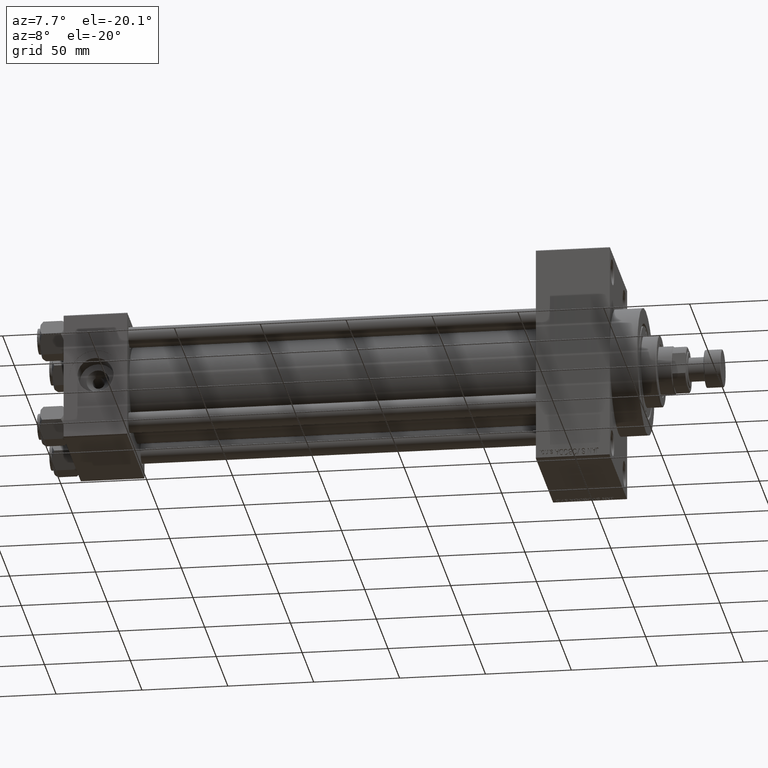
[diagram: clean part render]
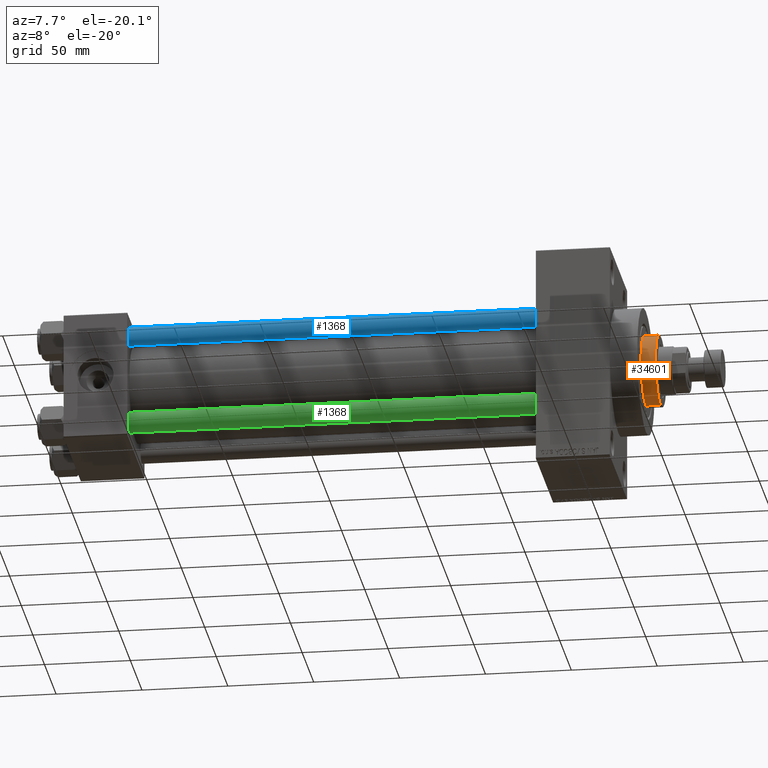
[diagram: same view with three faces highlighted in distinct colors, each labeled with its STEP entity id]
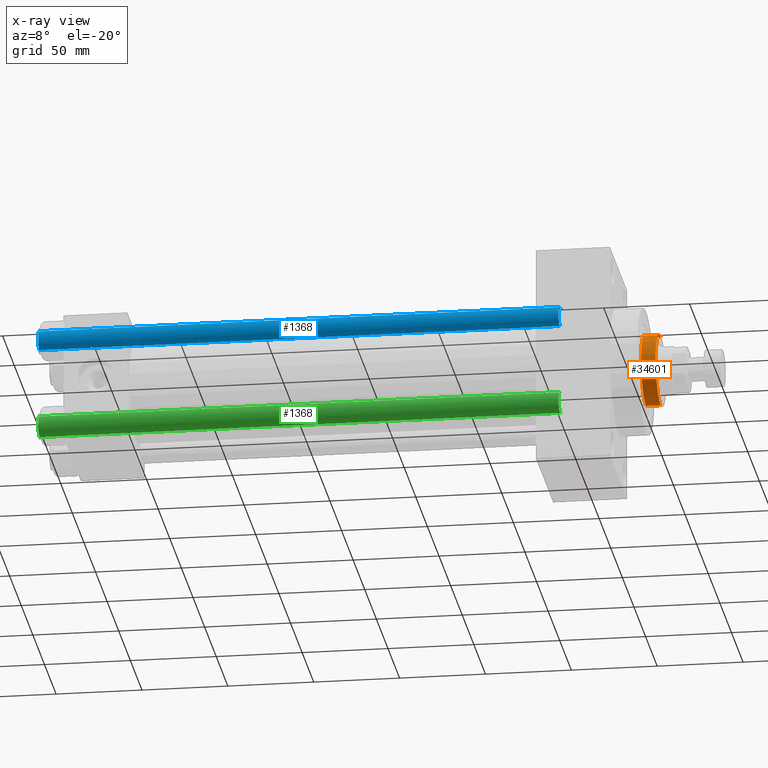
[diagram: x-ray of the same camera — body ghosted, the three highlighted faces saturated]
A machine part, auxiliary view with three faces highlighted in distinct colors.
The next image is the same camera in x-ray (body ghosted, the three faces saturated) — at least one of them is partly hidden behind the body in this view.
Their STEP definitions:

[orange] entity #34601 — the highlighted cylindrical surface (edge-blend (fillet) strip) has radius 21 mm, axis along (-1, 0, 0).
#157 = DIRECTION ( 'NONE',  ( 1.000000000000000000, 0.000000000000000000, 0.000000000000000000 ) ) ;
#645 = CARTESIAN_POINT ( 'NONE',  ( -21.00000000000000000, 0.000000000000000000, 43.25999999999999801 ) ) ;
#1894 = DIRECTION ( 'NONE',  ( 1.000000000000000000, 0.000000000000000000, 0.000000000000000000 ) ) ;
#4465 = CARTESIAN_POINT ( 'NONE',  ( -21.00000000000000000, 0.000000000000000000, 51.75999999999999801 ) ) ;
#5526 = AXIS2_PLACEMENT_3D ( 'NONE', #30940, #28029, #1894 ) ;
#6184 = CARTESIAN_POINT ( 'NONE',  ( -21.00000000000000000, 0.000000000000000000, 52.25999999999999801 ) ) ;
#6788 = CARTESIAN_POINT ( 'NONE',  ( 21.00000000000000000, 2.571758278209441661E-15, 52.25999999999999801 ) ) ;
#7186 = CIRCLE ( 'NONE', #24180, 21.00000000000000000 ) ;
#7193 = CARTESIAN_POINT ( 'NONE',  ( 0.000000000000000000, 0.000000000000000000, 51.75999999999999801 ) ) ;
#9329 = VECTOR ( 'NONE', #35716, 1000.000000000000000 ) ;
#10544 = VERTEX_POINT ( 'NONE', #40150 ) ;
#14686 = DIRECTION ( 'NONE',  ( -1.000000000000000000, 0.000000000000000000, 0.000000000000000000 ) ) ;
#15151 = CARTESIAN_POINT ( 'NONE',  ( 21.00000000000000000, 2.571758278209441661E-15, 51.75999999999999801 ) ) ;
#15212 = VERTEX_POINT ( 'NONE', #645 ) ;
#16422 = CYLINDRICAL_SURFACE ( 'NONE', #46388, 21.00000000000000000 ) ;
#17304 = LINE ( 'NONE', #6184, #9329 ) ;
#19264 = ORIENTED_EDGE ( 'NONE', *, *, #23568, .T. ) ;
#21544 = DIRECTION ( 'NONE',  ( -0.000000000000000000, -0.000000000000000000, -1.000000000000000000 ) ) ;
#23568 = EDGE_CURVE ( 'NONE', #32275, #10544, #25662, .T. ) ;
#24180 = AXIS2_PLACEMENT_3D ( 'NONE', #7193, #40354, #157 ) ;
#24678 = ORIENTED_EDGE ( 'NONE', *, *, #37663, .T. ) ;
#25317 = ORIENTED_EDGE ( 'NONE', *, *, #35913, .F. ) ;
#25662 = LINE ( 'NONE', #6788, #38434 ) ;
#27423 = EDGE_LOOP ( 'NONE', ( #39559, #19264, #24678, #25317 ) ) ;
#28029 = DIRECTION ( 'NONE',  ( 0.000000000000000000, 0.000000000000000000, 1.000000000000000000 ) ) ;
#30940 = CARTESIAN_POINT ( 'NONE',  ( 0.000000000000000000, 0.000000000000000000, 43.25999999999999801 ) ) ;
#31770 = CIRCLE ( 'NONE', #5526, 21.00000000000000000 ) ;
#32275 = VERTEX_POINT ( 'NONE', #15151 ) ;
#34601 = ADVANCED_FACE ( 'NONE', ( #42101 ), #16422, .T. ) ;
#35716 = DIRECTION ( 'NONE',  ( -0.000000000000000000, -0.000000000000000000, -1.000000000000000000 ) ) ;
#35913 = EDGE_CURVE ( 'NONE', #38076, #15212, #17304, .T. ) ;
#37663 = EDGE_CURVE ( 'NONE', #10544, #15212, #31770, .T. ) ;
#38076 = VERTEX_POINT ( 'NONE', #4465 ) ;
#38434 = VECTOR ( 'NONE', #21544, 1000.000000000000000 ) ;
#38458 = CARTESIAN_POINT ( 'NONE',  ( 0.000000000000000000, 0.000000000000000000, 52.25999999999999801 ) ) ;
#39559 = ORIENTED_EDGE ( 'NONE', *, *, #45445, .T. ) ;
#40150 = CARTESIAN_POINT ( 'NONE',  ( 21.00000000000000000, 2.571758278209441661E-15, 43.25999999999999801 ) ) ;
#40354 = DIRECTION ( 'NONE',  ( 0.000000000000000000, 0.000000000000000000, -1.000000000000000000 ) ) ;
#42101 = FACE_OUTER_BOUND ( 'NONE', #27423, .T. ) ;
#45445 = EDGE_CURVE ( 'NONE', #38076, #32275, #7186, .T. ) ;
#46388 = AXIS2_PLACEMENT_3D ( 'NONE', #38458, #47879, #14686 ) ;
#47879 = DIRECTION ( 'NONE',  ( -0.000000000000000000, -0.000000000000000000, -1.000000000000000000 ) ) ;

[blue] entity #1368 — the highlighted cylindrical surface (edge-blend (fillet) strip) has radius 6 mm, axis along (1, 0, 0).
#828 = VERTEX_POINT ( 'NONE', #43572 ) ;
#900 = CARTESIAN_POINT ( 'NONE',  ( 6.000000000000000888, 7.347880794884120722E-16, 0.4999999999999449329 ) ) ;
#1368 = ADVANCED_FACE ( 'NONE', ( #35228 ), #10042, .T. ) ;
#3238 = LINE ( 'NONE', #32759, #26825 ) ;
#4850 = AXIS2_PLACEMENT_3D ( 'NONE', #24430, #13078, #35327 ) ;
#8971 = EDGE_CURVE ( 'NONE', #828, #33602, #38853, .T. ) ;
#10042 = CYLINDRICAL_SURFACE ( 'NONE', #23260, 6.000000000000000888 ) ;
#10066 = DIRECTION ( 'NONE',  ( -0.000000000000000000, -0.000000000000000000, 1.000000000000000000 ) ) ;
#10617 = AXIS2_PLACEMENT_3D ( 'NONE', #14412, #10066, #17547 ) ;
#11531 = ORIENTED_EDGE ( 'NONE', *, *, #36843, .F. ) ;
#12174 = DIRECTION ( 'NONE',  ( -0.000000000000000000, -0.000000000000000000, -1.000000000000000000 ) ) ;
#13078 = DIRECTION ( 'NONE',  ( 0.000000000000000000, 0.000000000000000000, -1.000000000000000000 ) ) ;
#14412 = CARTESIAN_POINT ( 'NONE',  ( 0.000000000000000000, 0.000000000000000000, 0.4999999999999449329 ) ) ;
#17279 = EDGE_LOOP ( 'NONE', ( #17985, #19429, #36873, #11531 ) ) ;
#17543 = CARTESIAN_POINT ( 'NONE',  ( -6.000000000000000888, 0.000000000000000000, 304.0000000000000000 ) ) ;
#17547 = DIRECTION ( 'NONE',  ( 1.000000000000000000, 0.000000000000000000, 0.000000000000000000 ) ) ;
#17985 = ORIENTED_EDGE ( 'NONE', *, *, #8971, .T. ) ;
#19429 = ORIENTED_EDGE ( 'NONE', *, *, #23117, .T. ) ;
#19659 = VERTEX_POINT ( 'NONE', #36333 ) ;
#21192 = LINE ( 'NONE', #17543, #28705 ) ;
#23117 = EDGE_CURVE ( 'NONE', #33602, #35693, #3238, .T. ) ;
#23260 = AXIS2_PLACEMENT_3D ( 'NONE', #46387, #31598, #32065 ) ;
#24430 = CARTESIAN_POINT ( 'NONE',  ( 0.000000000000000000, 0.000000000000000000, 303.5000000000000000 ) ) ;
#25029 = EDGE_CURVE ( 'NONE', #35693, #19659, #31477, .T. ) ;
#26825 = VECTOR ( 'NONE', #12174, 1000.000000000000000 ) ;
#28705 = VECTOR ( 'NONE', #37160, 1000.000000000000000 ) ;
#31477 = CIRCLE ( 'NONE', #10617, 6.000000000000000888 ) ;
#31598 = DIRECTION ( 'NONE',  ( -0.000000000000000000, -0.000000000000000000, -1.000000000000000000 ) ) ;
#32065 = DIRECTION ( 'NONE',  ( -1.000000000000000000, 0.000000000000000000, 0.000000000000000000 ) ) ;
#32759 = CARTESIAN_POINT ( 'NONE',  ( 6.000000000000000888, 7.347880794884120722E-16, 304.0000000000000000 ) ) ;
#33602 = VERTEX_POINT ( 'NONE', #40235 ) ;
#35228 = FACE_OUTER_BOUND ( 'NONE', #17279, .T. ) ;
#35327 = DIRECTION ( 'NONE',  ( 1.000000000000000000, 0.000000000000000000, 0.000000000000000000 ) ) ;
#35693 = VERTEX_POINT ( 'NONE', #900 ) ;
#36333 = CARTESIAN_POINT ( 'NONE',  ( -6.000000000000000888, 0.000000000000000000, 0.4999999999999449329 ) ) ;
#36843 = EDGE_CURVE ( 'NONE', #828, #19659, #21192, .T. ) ;
#36873 = ORIENTED_EDGE ( 'NONE', *, *, #25029, .T. ) ;
#37160 = DIRECTION ( 'NONE',  ( -0.000000000000000000, -0.000000000000000000, -1.000000000000000000 ) ) ;
#38853 = CIRCLE ( 'NONE', #4850, 6.000000000000000888 ) ;
#40235 = CARTESIAN_POINT ( 'NONE',  ( 6.000000000000000888, 7.347880794884120722E-16, 303.5000000000000000 ) ) ;
#43572 = CARTESIAN_POINT ( 'NONE',  ( -6.000000000000000888, 0.000000000000000000, 303.5000000000000000 ) ) ;
#46387 = CARTESIAN_POINT ( 'NONE',  ( 0.000000000000000000, 0.000000000000000000, 304.0000000000000000 ) ) ;

[green] entity #1368 — the highlighted cylindrical surface (edge-blend (fillet) strip) has radius 6 mm, axis along (-1, 0, 0).
#828 = VERTEX_POINT ( 'NONE', #43572 ) ;
#900 = CARTESIAN_POINT ( 'NONE',  ( 6.000000000000000888, 7.347880794884120722E-16, 0.4999999999999449329 ) ) ;
#1368 = ADVANCED_FACE ( 'NONE', ( #35228 ), #10042, .T. ) ;
#3238 = LINE ( 'NONE', #32759, #26825 ) ;
#4850 = AXIS2_PLACEMENT_3D ( 'NONE', #24430, #13078, #35327 ) ;
#8971 = EDGE_CURVE ( 'NONE', #828, #33602, #38853, .T. ) ;
#10042 = CYLINDRICAL_SURFACE ( 'NONE', #23260, 6.000000000000000888 ) ;
#10066 = DIRECTION ( 'NONE',  ( -0.000000000000000000, -0.000000000000000000, 1.000000000000000000 ) ) ;
#10617 = AXIS2_PLACEMENT_3D ( 'NONE', #14412, #10066, #17547 ) ;
#11531 = ORIENTED_EDGE ( 'NONE', *, *, #36843, .F. ) ;
#12174 = DIRECTION ( 'NONE',  ( -0.000000000000000000, -0.000000000000000000, -1.000000000000000000 ) ) ;
#13078 = DIRECTION ( 'NONE',  ( 0.000000000000000000, 0.000000000000000000, -1.000000000000000000 ) ) ;
#14412 = CARTESIAN_POINT ( 'NONE',  ( 0.000000000000000000, 0.000000000000000000, 0.4999999999999449329 ) ) ;
#17279 = EDGE_LOOP ( 'NONE', ( #17985, #19429, #36873, #11531 ) ) ;
#17543 = CARTESIAN_POINT ( 'NONE',  ( -6.000000000000000888, 0.000000000000000000, 304.0000000000000000 ) ) ;
#17547 = DIRECTION ( 'NONE',  ( 1.000000000000000000, 0.000000000000000000, 0.000000000000000000 ) ) ;
#17985 = ORIENTED_EDGE ( 'NONE', *, *, #8971, .T. ) ;
#19429 = ORIENTED_EDGE ( 'NONE', *, *, #23117, .T. ) ;
#19659 = VERTEX_POINT ( 'NONE', #36333 ) ;
#21192 = LINE ( 'NONE', #17543, #28705 ) ;
#23117 = EDGE_CURVE ( 'NONE', #33602, #35693, #3238, .T. ) ;
#23260 = AXIS2_PLACEMENT_3D ( 'NONE', #46387, #31598, #32065 ) ;
#24430 = CARTESIAN_POINT ( 'NONE',  ( 0.000000000000000000, 0.000000000000000000, 303.5000000000000000 ) ) ;
#25029 = EDGE_CURVE ( 'NONE', #35693, #19659, #31477, .T. ) ;
#26825 = VECTOR ( 'NONE', #12174, 1000.000000000000000 ) ;
#28705 = VECTOR ( 'NONE', #37160, 1000.000000000000000 ) ;
#31477 = CIRCLE ( 'NONE', #10617, 6.000000000000000888 ) ;
#31598 = DIRECTION ( 'NONE',  ( -0.000000000000000000, -0.000000000000000000, -1.000000000000000000 ) ) ;
#32065 = DIRECTION ( 'NONE',  ( -1.000000000000000000, 0.000000000000000000, 0.000000000000000000 ) ) ;
#32759 = CARTESIAN_POINT ( 'NONE',  ( 6.000000000000000888, 7.347880794884120722E-16, 304.0000000000000000 ) ) ;
#33602 = VERTEX_POINT ( 'NONE', #40235 ) ;
#35228 = FACE_OUTER_BOUND ( 'NONE', #17279, .T. ) ;
#35327 = DIRECTION ( 'NONE',  ( 1.000000000000000000, 0.000000000000000000, 0.000000000000000000 ) ) ;
#35693 = VERTEX_POINT ( 'NONE', #900 ) ;
#36333 = CARTESIAN_POINT ( 'NONE',  ( -6.000000000000000888, 0.000000000000000000, 0.4999999999999449329 ) ) ;
#36843 = EDGE_CURVE ( 'NONE', #828, #19659, #21192, .T. ) ;
#36873 = ORIENTED_EDGE ( 'NONE', *, *, #25029, .T. ) ;
#37160 = DIRECTION ( 'NONE',  ( -0.000000000000000000, -0.000000000000000000, -1.000000000000000000 ) ) ;
#38853 = CIRCLE ( 'NONE', #4850, 6.000000000000000888 ) ;
#40235 = CARTESIAN_POINT ( 'NONE',  ( 6.000000000000000888, 7.347880794884120722E-16, 303.5000000000000000 ) ) ;
#43572 = CARTESIAN_POINT ( 'NONE',  ( -6.000000000000000888, 0.000000000000000000, 303.5000000000000000 ) ) ;
#46387 = CARTESIAN_POINT ( 'NONE',  ( 0.000000000000000000, 0.000000000000000000, 304.0000000000000000 ) ) ;